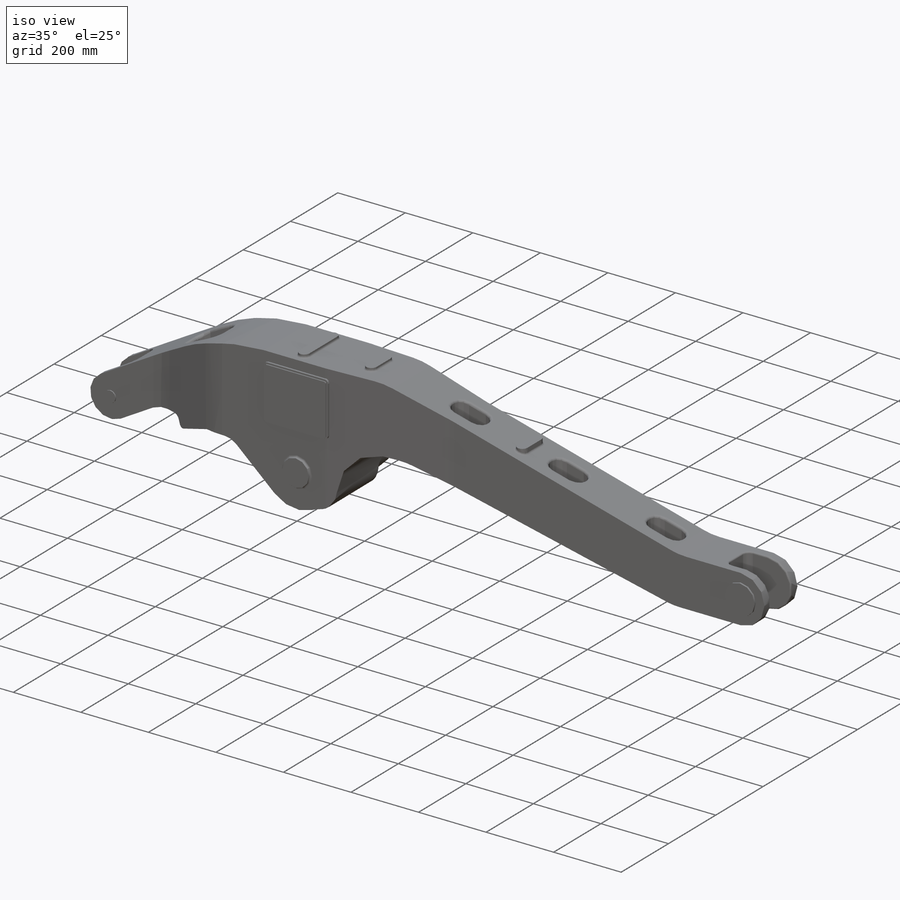
[diagram: iso view]
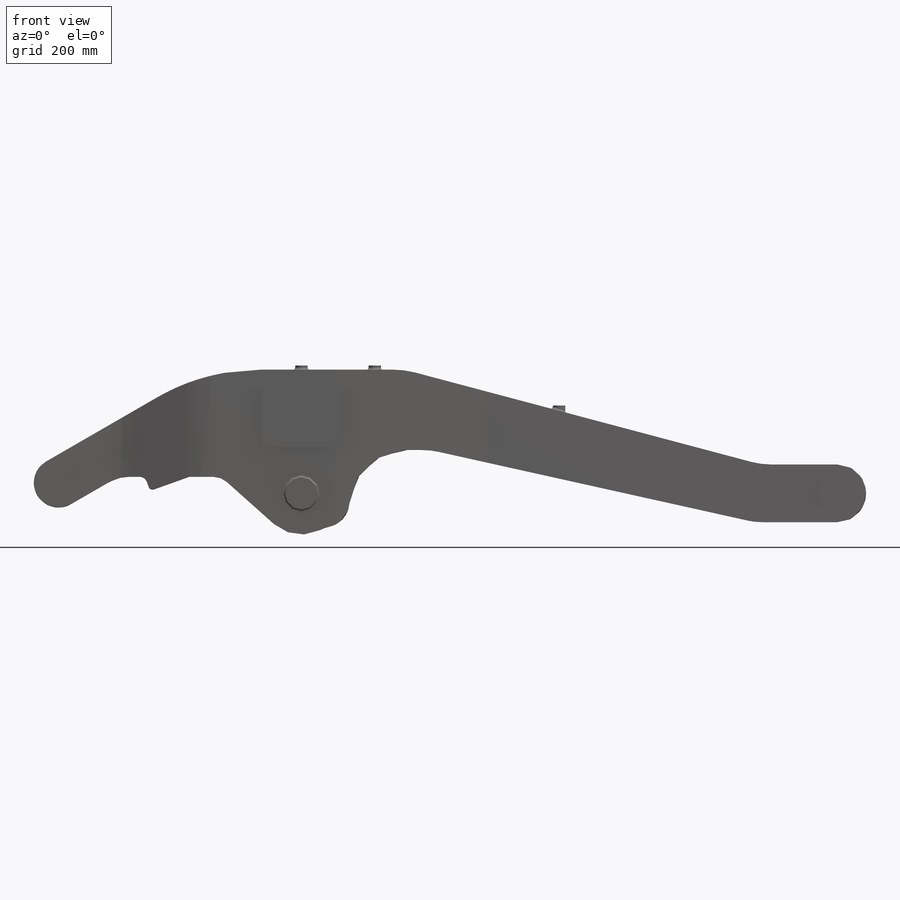
[diagram: front view]
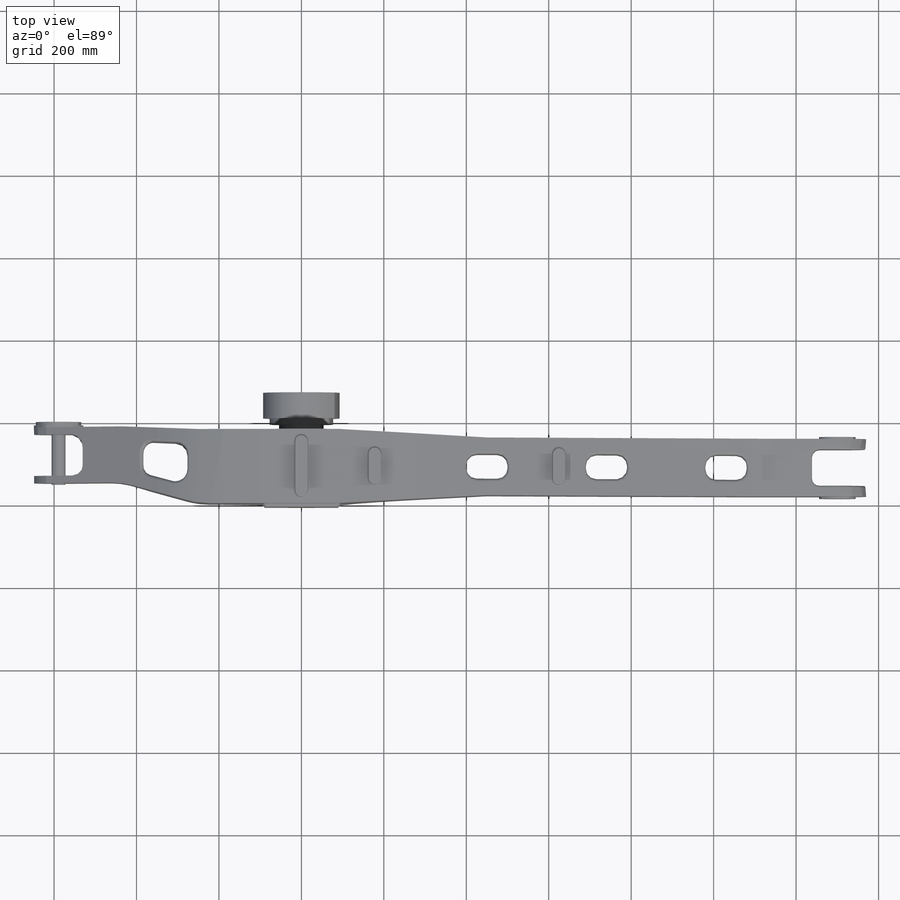
[diagram: top view]
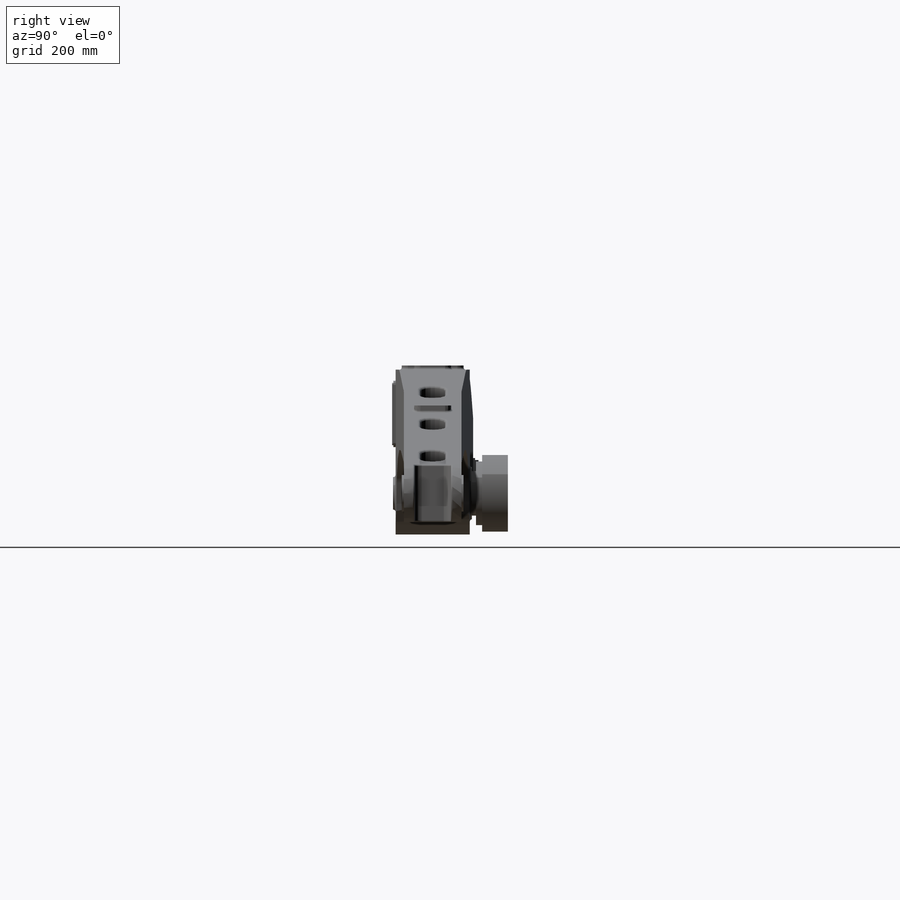
[diagram: right view]
SOLIDWORKS PART (.sldprt)
format: sldprt  version: not decoded by parser v0  size: 3,955,200 bytes
history: native  units: mm
features: sketch x20, extrude x15, fillet x3, cut_extrude x2, material x1, plane x1 (+13 scaffold rows collapsed)
feature tree (55):
  scaffold x13  (default folders/planes/origin — collapsed)
  material  "Material <not specified>"
  sketch  "Sketch1"
  sketch  "Sketch2"
  sketch  "Sketch3"  dims[D1=101.6mm]
  extrude  "Extrude1"  Depth=188.214mm
  sketch  "Sketch4"
  cut_extrude  "Cut-Extrude2"  Depth=188.214mm
  sketch  "Sketch6"
  extrude  "Extrude2"  [1 undecoded]
  sketch  "Sketch7"
  extrude  "Extrude3"  Depth=5.334mm
  sketch  "Sketch8"
  extrude  "Extrude4"  Depth=3.175mm
  sketch  "Sketch9"  dims[D1=~78.75904mm]
  extrude  "Extrude5"  Depth=6.35mm
  plane  "Plane1"  Offset=213.148205mm
  sketch  "Sketch10"
  extrude  "Extrude6"  [1 undecoded]
  sketch  "Sketch11"
  extrude  "Extrude7"  Depth=3.175mm
  sketch  "Sketch12"
  extrude  "Extrude8"  [1 undecoded]
  sketch  "Sketch13"
  extrude  "Extrude9"  [1 undecoded]
  sketch  "Sketch14"
  cut_extrude  "Cut-Extrude3"  Depth=196.215mm
  sketch  "Sketch15"  dims[D1=127.0mm]
  extrude  "Extrude10"  [1 undecoded]
  sketch  "Sketch16"  dims[D1=107.95mm]
  extrude  "Extrude11"  [1 undecoded]
  sketch  "Sketch17"  dims[D1=23.114mm]
  extrude  "Extrude12"  [1 undecoded]
  sketch  "Sketch18"  dims[D1=15.748mm]
  extrude  "Extrude13"  [1 undecoded]
  sketch  "Sketch19"  dims[D1=88.9mm]
  extrude  "Extrude14"  [1 undecoded]
  sketch  "Sketch20"  dims[D1=0.0mm]
  extrude  "Extrude15"  [1 undecoded]
  fillet  "Fillet2"  Radius=5.08mm
  fillet  "Fillet3"  Radius=3.81mm
  fillet  "Fillet4"  Radius=6.35mm
  sketch  "Sketch21"
decode coverage: 18 of 40 modeling features carry decoded parameters
note: ~ marks probable driven/reference dimensions
note: 10 parameter values undecoded
summary: no parameter record found for 10 features
note: suppression state not decoded; provenance and decode notes live in map.json
